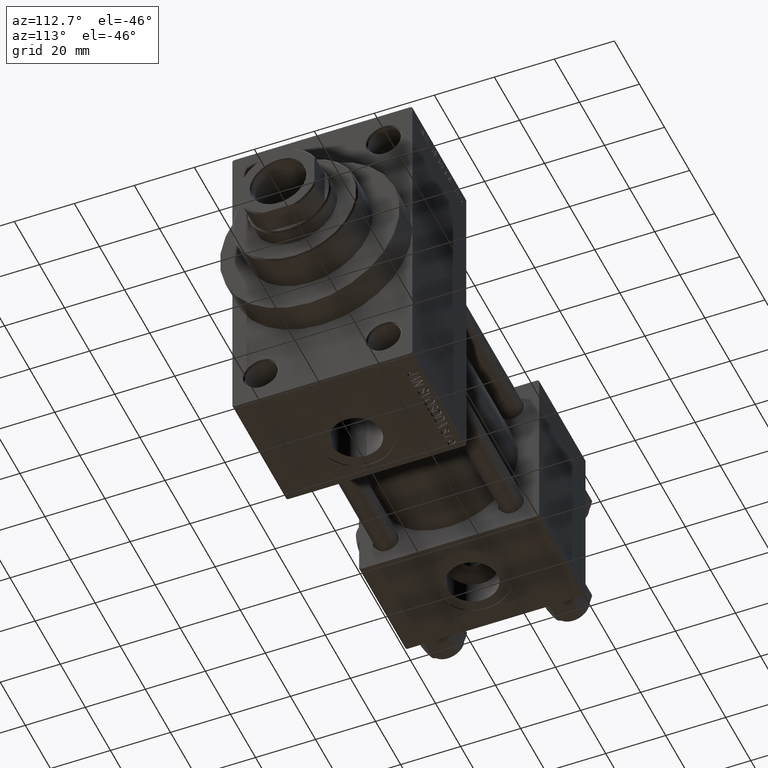
[diagram: clean part render]
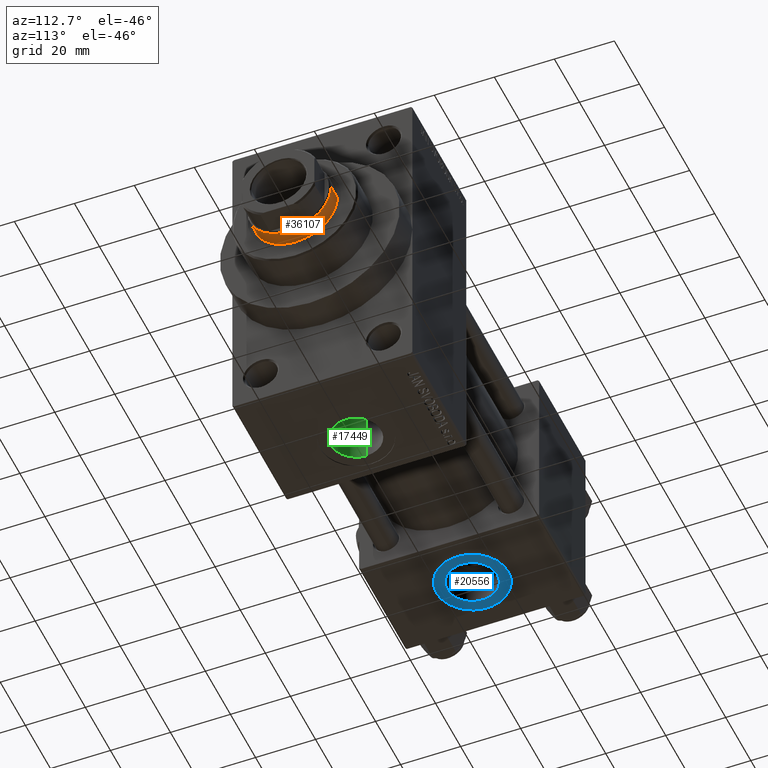
[diagram: same view with three faces highlighted in distinct colors, each labeled with its STEP entity id]
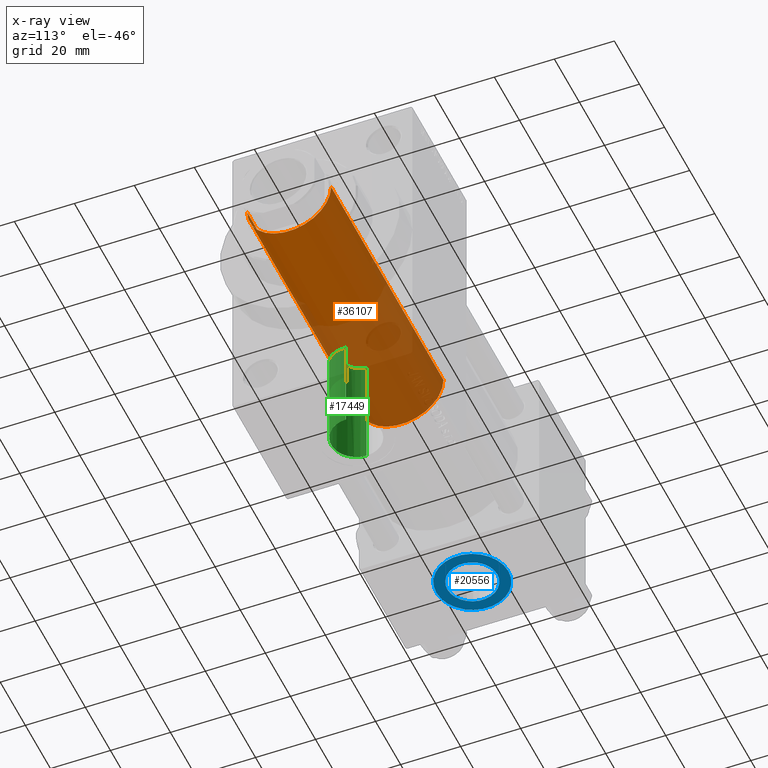
[diagram: x-ray of the same camera — body ghosted, the three highlighted faces saturated]
A machine part, auxiliary view with three faces highlighted in distinct colors.
The next image is the same camera in x-ray (body ghosted, the three faces saturated) — at least one of them is partly hidden behind the body in this view.
Their STEP definitions:

[orange] entity #36107 — the highlighted cylindrical surface (partial cylindrical patch) has radius 14 mm, axis along (-1, 0, 0).
#3424 = DIRECTION ( 'NONE',  ( -0.000000000000000000, -0.000000000000000000, -1.000000000000000000 ) ) ;
#4684 = DIRECTION ( 'NONE',  ( -0.000000000000000000, -0.000000000000000000, -1.000000000000000000 ) ) ;
#7288 = ORIENTED_EDGE ( 'NONE', *, *, #13361, .T. ) ;
#7648 = CARTESIAN_POINT ( 'NONE',  ( -14.00000000000000178, 0.000000000000000000, 38.00000000000000000 ) ) ;
#9558 = VECTOR ( 'NONE', #4684, 1000.000000000000000 ) ;
#10035 = CIRCLE ( 'NONE', #37907, 14.00000000000000178 ) ;
#10472 = CIRCLE ( 'NONE', #31941, 14.00000000000000178 ) ;
#11244 = DIRECTION ( 'NONE',  ( -0.000000000000000000, -0.000000000000000000, -1.000000000000000000 ) ) ;
#13278 = CARTESIAN_POINT ( 'NONE',  ( 0.000000000000000000, 0.000000000000000000, 38.00000000000000000 ) ) ;
#13361 = EDGE_CURVE ( 'NONE', #43148, #13375, #46566, .T. ) ;
#13375 = VERTEX_POINT ( 'NONE', #23628 ) ;
#15482 = LINE ( 'NONE', #30660, #27541 ) ;
#16163 = CARTESIAN_POINT ( 'NONE',  ( 14.00000000000000178, 1.714505518806294441E-15, 128.0000000000000000 ) ) ;
#16546 = EDGE_LOOP ( 'NONE', ( #32405, #7288, #38158, #23779 ) ) ;
#18399 = DIRECTION ( 'NONE',  ( -1.000000000000000000, 0.000000000000000000, 0.000000000000000000 ) ) ;
#21711 = VERTEX_POINT ( 'NONE', #7648 ) ;
#23628 = CARTESIAN_POINT ( 'NONE',  ( 14.00000000000000178, 1.714505518806294441E-15, 38.00000000000000000 ) ) ;
#23779 = ORIENTED_EDGE ( 'NONE', *, *, #46709, .F. ) ;
#26000 = CARTESIAN_POINT ( 'NONE',  ( 14.00000000000000178, 1.714505518806294441E-15, 127.5000000000000853 ) ) ;
#26589 = VERTEX_POINT ( 'NONE', #37107 ) ;
#26590 = CYLINDRICAL_SURFACE ( 'NONE', #42071, 14.00000000000000178 ) ;
#27541 = VECTOR ( 'NONE', #11244, 1000.000000000000000 ) ;
#30660 = CARTESIAN_POINT ( 'NONE',  ( -14.00000000000000178, 0.000000000000000000, 128.0000000000000000 ) ) ;
#31941 = AXIS2_PLACEMENT_3D ( 'NONE', #40963, #48453, #40471 ) ;
#32405 = ORIENTED_EDGE ( 'NONE', *, *, #45433, .T. ) ;
#32436 = DIRECTION ( 'NONE',  ( 1.000000000000000000, 0.000000000000000000, 0.000000000000000000 ) ) ;
#36107 = ADVANCED_FACE ( 'NONE', ( #49280 ), #26590, .T. ) ;
#37107 = CARTESIAN_POINT ( 'NONE',  ( -14.00000000000000178, 0.000000000000000000, 127.5000000000000853 ) ) ;
#37907 = AXIS2_PLACEMENT_3D ( 'NONE', #13278, #39436, #32436 ) ;
#38158 = ORIENTED_EDGE ( 'NONE', *, *, #47386, .T. ) ;
#39436 = DIRECTION ( 'NONE',  ( 0.000000000000000000, 0.000000000000000000, 1.000000000000000000 ) ) ;
#40471 = DIRECTION ( 'NONE',  ( 1.000000000000000000, 0.000000000000000000, 0.000000000000000000 ) ) ;
#40963 = CARTESIAN_POINT ( 'NONE',  ( 0.000000000000000000, 0.000000000000000000, 127.5000000000000853 ) ) ;
#41060 = CARTESIAN_POINT ( 'NONE',  ( 0.000000000000000000, 0.000000000000000000, 128.0000000000000000 ) ) ;
#42071 = AXIS2_PLACEMENT_3D ( 'NONE', #41060, #3424, #18399 ) ;
#43148 = VERTEX_POINT ( 'NONE', #26000 ) ;
#45433 = EDGE_CURVE ( 'NONE', #26589, #43148, #10472, .T. ) ;
#46566 = LINE ( 'NONE', #16163, #9558 ) ;
#46709 = EDGE_CURVE ( 'NONE', #26589, #21711, #15482, .T. ) ;
#47386 = EDGE_CURVE ( 'NONE', #13375, #21711, #10035, .T. ) ;
#48453 = DIRECTION ( 'NONE',  ( 0.000000000000000000, 0.000000000000000000, -1.000000000000000000 ) ) ;
#49280 = FACE_OUTER_BOUND ( 'NONE', #16546, .T. ) ;

[blue] entity #20556 — the highlighted planar face has unit normal (0, -0, -1).
#968 = CARTESIAN_POINT ( 'NONE',  ( 18.50000000000000355, 2.299712579496311108E-15, -29.80000000000000426 ) ) ;
#1620 = CIRCLE ( 'NONE', #15159, 8.330000000000000071 ) ;
#3624 = ORIENTED_EDGE ( 'NONE', *, *, #13107, .F. ) ;
#3762 = EDGE_CURVE ( 'NONE', #25175, #44430, #42012, .T. ) ;
#3924 = ORIENTED_EDGE ( 'NONE', *, *, #3762, .F. ) ;
#4273 = EDGE_CURVE ( 'NONE', #41071, #37344, #14171, .T. ) ;
#9684 = EDGE_LOOP ( 'NONE', ( #43905, #16369 ) ) ;
#11060 = CARTESIAN_POINT ( 'NONE',  ( 18.50000000000000355, 2.299712579496311503E-15, -29.80000000000000426 ) ) ;
#11547 = DIRECTION ( 'NONE',  ( 0.000000000000000000, 1.000000000000000000, 0.000000000000000000 ) ) ;
#11738 = AXIS2_PLACEMENT_3D ( 'NONE', #26468, #15014, #33931 ) ;
#13107 = EDGE_CURVE ( 'NONE', #44430, #25175, #1620, .T. ) ;
#14171 = CIRCLE ( 'NONE', #11738, 12.00000000000000178 ) ;
#15014 = DIRECTION ( 'NONE',  ( 0.000000000000000000, -1.734723475976806848E-16, -1.000000000000000000 ) ) ;
#15159 = AXIS2_PLACEMENT_3D ( 'NONE', #11060, #37732, #11547 ) ;
#15662 = CARTESIAN_POINT ( 'NONE',  ( 18.50000000000000355, -8.329999999999998295, -29.80000000000000426 ) ) ;
#16182 = DIRECTION ( 'NONE',  ( 0.000000000000000000, 1.000000000000000000, -1.734723475976806848E-16 ) ) ;
#16369 = ORIENTED_EDGE ( 'NONE', *, *, #4273, .T. ) ;
#17593 = CARTESIAN_POINT ( 'NONE',  ( 18.50000000000000355, -12.00000000000000000, -29.80000000000000071 ) ) ;
#20556 = ADVANCED_FACE ( 'NONE', ( #46833, #27160 ), #42846, .T. ) ;
#20774 = EDGE_LOOP ( 'NONE', ( #3924, #3624 ) ) ;
#25175 = VERTEX_POINT ( 'NONE', #27501 ) ;
#26409 = DIRECTION ( 'NONE',  ( 0.000000000000000000, -1.734723475976806848E-16, -1.000000000000000000 ) ) ;
#26468 = CARTESIAN_POINT ( 'NONE',  ( 18.50000000000000355, 2.299712579496311108E-15, -29.80000000000000426 ) ) ;
#26898 = CARTESIAN_POINT ( 'NONE',  ( 18.50000000000000355, 2.299712579496311503E-15, -29.80000000000000426 ) ) ;
#26916 = CARTESIAN_POINT ( 'NONE',  ( 18.50000000000000355, 12.00000000000000355, -29.80000000000000782 ) ) ;
#27160 = FACE_OUTER_BOUND ( 'NONE', #9684, .T. ) ;
#27501 = CARTESIAN_POINT ( 'NONE',  ( 18.50000000000000355, 8.330000000000001847, -29.80000000000000426 ) ) ;
#27888 = DIRECTION ( 'NONE',  ( 0.000000000000000000, -1.734723475976806848E-16, -1.000000000000000000 ) ) ;
#29235 = AXIS2_PLACEMENT_3D ( 'NONE', #38950, #41698, #37964 ) ;
#32354 = EDGE_CURVE ( 'NONE', #37344, #41071, #35594, .T. ) ;
#33254 = AXIS2_PLACEMENT_3D ( 'NONE', #26898, #26409, #41608 ) ;
#33931 = DIRECTION ( 'NONE',  ( 0.000000000000000000, 1.000000000000000000, -2.891205793294677833E-16 ) ) ;
#35594 = CIRCLE ( 'NONE', #29235, 12.00000000000000178 ) ;
#37344 = VERTEX_POINT ( 'NONE', #26916 ) ;
#37732 = DIRECTION ( 'NONE',  ( 0.000000000000000000, -1.734723475976806848E-16, -1.000000000000000000 ) ) ;
#37964 = DIRECTION ( 'NONE',  ( 0.000000000000000000, 1.000000000000000000, -2.891205793294677833E-16 ) ) ;
#38950 = CARTESIAN_POINT ( 'NONE',  ( 18.50000000000000355, 2.299712579496311108E-15, -29.80000000000000426 ) ) ;
#41071 = VERTEX_POINT ( 'NONE', #17593 ) ;
#41608 = DIRECTION ( 'NONE',  ( 0.000000000000000000, 1.000000000000000000, 0.000000000000000000 ) ) ;
#41698 = DIRECTION ( 'NONE',  ( 0.000000000000000000, -1.734723475976806848E-16, -1.000000000000000000 ) ) ;
#42012 = CIRCLE ( 'NONE', #33254, 8.330000000000000071 ) ;
#42846 = PLANE ( 'NONE',  #48709 ) ;
#43905 = ORIENTED_EDGE ( 'NONE', *, *, #32354, .T. ) ;
#44430 = VERTEX_POINT ( 'NONE', #15662 ) ;
#46833 = FACE_BOUND ( 'NONE', #20774, .T. ) ;
#48709 = AXIS2_PLACEMENT_3D ( 'NONE', #968, #27888, #16182 ) ;

[green] entity #17449 — the highlighted cylindrical surface (edge-blend (fillet) strip) has radius 8.33 mm, axis along (-0, -0, -1).
#600 = CARTESIAN_POINT ( 'NONE',  ( 116.7709310325000160, -6.021442665975470732, -21.68155238348414926 ) ) ;
#850 = CARTESIAN_POINT ( 'NONE',  ( 114.7487363894115333, -7.487015359358448308, -21.22021487626641090 ) ) ;
#1000 = CARTESIAN_POINT ( 'NONE',  ( 103.3957011906716446, -3.437280950139308899, -15.12160336949478889 ) ) ;
#1486 = CARTESIAN_POINT ( 'NONE',  ( 103.1276717308560507, -2.734627543336183741, -15.25872731907395519 ) ) ;
#1792 = LINE ( 'NONE', #17015, #21687 ) ;
#1827 = CARTESIAN_POINT ( 'NONE',  ( 106.2981393575764457, -6.888851288155064978, -21.42070446004186479 ) ) ;
#1881 = VERTEX_POINT ( 'NONE', #29957 ) ;
#2204 = CIRCLE ( 'NONE', #30826, 8.330000000000003624 ) ;
#4337 = CARTESIAN_POINT ( 'NONE',  ( 118.0799258618782517, -4.408873422199381054, -22.06660649451128720 ) ) ;
#4593 = EDGE_CURVE ( 'NONE', #12757, #13244, #2204, .T. ) ;
#5317 = CARTESIAN_POINT ( 'NONE',  ( 119.3300000000000125, 7.322959413072144135E-15, 54.50100000000002609 ) ) ;
#5468 = ORIENTED_EDGE ( 'NONE', *, *, #23302, .T. ) ;
#5729 = CARTESIAN_POINT ( 'NONE',  ( 102.6700000000000017, 0.000000000000000000, -15.50000000000000000 ) ) ;
#5968 = ORIENTED_EDGE ( 'NONE', *, *, #37295, .T. ) ;
#7569 = DIRECTION ( 'NONE',  ( -1.000000000000000000, 0.000000000000000000, 0.000000000000000000 ) ) ;
#8075 = CARTESIAN_POINT ( 'NONE',  ( 119.2979863424998257, -0.8432915997222987237, -22.48808859033163188 ) ) ;
#8310 = CARTESIAN_POINT ( 'NONE',  ( 111.2794540716097629, -8.328024065339553417, -20.90201419577500985 ) ) ;
#8554 = CARTESIAN_POINT ( 'NONE',  ( 109.3814412075936531, -8.182171164303330357, -20.95982457214782357 ) ) ;
#8683 = DIRECTION ( 'NONE',  ( -1.000000000000000000, 0.000000000000000000, 0.000000000000000000 ) ) ;
#8810 = CARTESIAN_POINT ( 'NONE',  ( 108.1560306839754588, -7.840697625789145420, -21.09036237300174932 ) ) ;
#9053 = CARTESIAN_POINT ( 'NONE',  ( 107.3830852825355180, -7.515492575748676352, -21.20842510955139204 ) ) ;
#9672 = DIRECTION ( 'NONE',  ( -0.000000000000000000, -0.000000000000000000, -1.000000000000000000 ) ) ;
#9713 = CARTESIAN_POINT ( 'NONE',  ( 102.7171157565309301, -1.018099666673965453, -15.47453571050230892 ) ) ;
#12073 = CARTESIAN_POINT ( 'NONE',  ( 113.1626272159215887, -8.088971939222112439, -20.99812971082578272 ) ) ;
#12757 = VERTEX_POINT ( 'NONE', #28594 ) ;
#12933 = CARTESIAN_POINT ( 'NONE',  ( 111.0000000000000000, 6.302828629382399373E-15, -54.29999999999999716 ) ) ;
#13053 = CARTESIAN_POINT ( 'NONE',  ( 105.9550632640747949, -6.641689111475751695, -21.49922460944221569 ) ) ;
#13212 = CARTESIAN_POINT ( 'NONE',  ( 102.8544164064934421, -1.761197746334713710, -15.40162744955963348 ) ) ;
#13244 = VERTEX_POINT ( 'NONE', #41833 ) ;
#14155 = CYLINDRICAL_SURFACE ( 'NONE', #47928, 8.330000000000003624 ) ;
#15082 = CARTESIAN_POINT ( 'NONE',  ( 116.4597915280917988, -6.305104980880364529, -21.60018777995134798 ) ) ;
#15817 = CARTESIAN_POINT ( 'NONE',  ( 115.4717217021022293, -7.077548616542896909, -21.36464718587223643 ) ) ;
#16301 = CARTESIAN_POINT ( 'NONE',  ( 110.4273342078095936, -8.312974207010734418, -20.90801079915067362 ) ) ;
#16452 = CARTESIAN_POINT ( 'NONE',  ( 104.1235194041727965, -4.727222868318516014, -14.76810523087041283 ) ) ;
#16800 = CARTESIAN_POINT ( 'NONE',  ( 104.7400000000000233, -5.495570943951159748, -21.81854028114621258 ) ) ;
#17015 = CARTESIAN_POINT ( 'NONE',  ( 102.6700000000000017, 6.302828629382399373E-15, 54.50100000000002609 ) ) ;
#17202 = CARTESIAN_POINT ( 'NONE',  ( 102.9113641093124158, -2.006660017464342083, -15.37152394863919369 ) ) ;
#17252 = DIRECTION ( 'NONE',  ( -0.000000000000000000, -0.000000000000000000, -1.000000000000000000 ) ) ;
#17434 = B_SPLINE_CURVE_WITH_KNOTS ( 'NONE', 3,
 ( #31241, #42237, #8075, #38490, #23289, #49220, #27279, #26294, #4337, #19553, #46470, #600, #15082, #15817, #850, #12073, #42476, #8310, #19801, #34989, #16301, #35240, #8554, #31474, #8810, #9053, #42718, #1827, #13053, #46956, #24503, #16800 ),
 .UNSPECIFIED., .F., .F.,
 ( 4, 2, 2, 2, 2, 2, 2, 2, 2, 2, 2, 2, 2, 2, 2, 4 ),
 ( 0.02026158208243475714, 0.02152696880141127464, 0.02279235552038778867, 0.02405774223936430617, 0.02532312895834082367, 0.02658851567731734117, 0.02785390239629385520, 0.03038467583424691795, 0.03291544927219998418, 0.03354814263168822558, 0.03418083599117646698, 0.03544622271015295673, 0.03671160942912944647, 0.03797699614810593621, 0.03924238286708242596, 0.04050776958605891570 ),
 .UNSPECIFIED. ) ;
#17449 = ADVANCED_FACE ( 'NONE', ( #43825 ), #14155, .F. ) ;
#18644 = CARTESIAN_POINT ( 'NONE',  ( 104.7400000000000233, -5.495570943951159748, -21.81854028114621258 ) ) ;
#18833 = ORIENTED_EDGE ( 'NONE', *, *, #42048, .F. ) ;
#19415 = LINE ( 'NONE', #49069, #22628 ) ;
#19553 = CARTESIAN_POINT ( 'NONE',  ( 117.6031555897930758, -5.095277354536523973, -21.91828998158686304 ) ) ;
#19801 = CARTESIAN_POINT ( 'NONE',  ( 111.0645977083230065, -8.332469890991669459, -20.90023832775082724 ) ) ;
#19926 = DIRECTION ( 'NONE',  ( 0.000000000000000000, 0.000000000000000000, -1.000000000000000000 ) ) ;
#20204 = CARTESIAN_POINT ( 'NONE',  ( 104.7400000000000233, -5.495570943951159748, -14.49305695841977126 ) ) ;
#20293 = LINE ( 'NONE', #5317, #41257 ) ;
#21354 = ORIENTED_EDGE ( 'NONE', *, *, #23519, .T. ) ;
#21687 = VECTOR ( 'NONE', #17252, 1000.000000000000000 ) ;
#22628 = VECTOR ( 'NONE', #34101, 1000.000000000000000 ) ;
#23289 = CARTESIAN_POINT ( 'NONE',  ( 119.0725935047802437, -2.097577831626823652, -22.40566635581345167 ) ) ;
#23302 = EDGE_CURVE ( 'NONE', #34797, #1881, #47895, .T. ) ;
#23519 = EDGE_CURVE ( 'NONE', #1881, #36111, #19415, .T. ) ;
#24503 = CARTESIAN_POINT ( 'NONE',  ( 105.0173696454154140, -5.811522461638596759, -21.73895961452385350 ) ) ;
#24918 = CARTESIAN_POINT ( 'NONE',  ( 104.4179755865719841, -5.128753219529214036, -14.63214927233553020 ) ) ;
#26294 = CARTESIAN_POINT ( 'NONE',  ( 118.2951098973458244, -4.042988316980868468, -22.13706359110742383 ) ) ;
#27279 = CARTESIAN_POINT ( 'NONE',  ( 118.6639140372367791, -3.290714903397363500, -22.26132373405804898 ) ) ;
#27499 = EDGE_LOOP ( 'NONE', ( #18833, #5968, #36072, #36874, #5468, #21354 ) ) ;
#27664 = CARTESIAN_POINT ( 'NONE',  ( 103.6132950555275301, -3.881908228545226436, -15.01247336923427866 ) ) ;
#28409 = CARTESIAN_POINT ( 'NONE',  ( 103.0478246800818312, -2.493115055326095231, -15.30015719691090403 ) ) ;
#28594 = CARTESIAN_POINT ( 'NONE',  ( 119.3300000000000125, 7.322959413072142557E-15, -54.29999999999999716 ) ) ;
#29957 = CARTESIAN_POINT ( 'NONE',  ( 104.7400000000000233, -5.495570943951159748, -14.49305695841977126 ) ) ;
#30826 = AXIS2_PLACEMENT_3D ( 'NONE', #12933, #19926, #8683 ) ;
#31241 = CARTESIAN_POINT ( 'NONE',  ( 119.3300000000000125, -1.030843987897557177E-23, -22.50000000000000355 ) ) ;
#31474 = CARTESIAN_POINT ( 'NONE',  ( 108.5613052431537540, -7.976241308370980221, -21.03905286955202314 ) ) ;
#33074 = CARTESIAN_POINT ( 'NONE',  ( 111.0000000000000000, 6.302828629382399373E-15, 54.50100000000002609 ) ) ;
#34101 = DIRECTION ( 'NONE',  ( -0.000000000000000000, -0.000000000000000000, -1.000000000000000000 ) ) ;
#34797 = VERTEX_POINT ( 'NONE', #37442 ) ;
#34989 = CARTESIAN_POINT ( 'NONE',  ( 110.6388607599010214, -8.324890737869420576, -20.90325837862613412 ) ) ;
#35166 = VERTEX_POINT ( 'NONE', #35347 ) ;
#35240 = CARTESIAN_POINT ( 'NONE',  ( 109.7966742200955963, -8.253438808842114227, -20.93161653585327286 ) ) ;
#35347 = CARTESIAN_POINT ( 'NONE',  ( 119.3300000000000125, -1.030843987897557177E-23, -22.50000000000000355 ) ) ;
#35481 = DIRECTION ( 'NONE',  ( -0.000000000000000000, -0.000000000000000000, -1.000000000000000000 ) ) ;
#35633 = CARTESIAN_POINT ( 'NONE',  ( 102.6700000000000017, -0.5138056584032570928, -15.50000000000000178 ) ) ;
#36072 = ORIENTED_EDGE ( 'NONE', *, *, #4593, .T. ) ;
#36111 = VERTEX_POINT ( 'NONE', #18644 ) ;
#36874 = ORIENTED_EDGE ( 'NONE', *, *, #44017, .F. ) ;
#37295 = EDGE_CURVE ( 'NONE', #35166, #12757, #20293, .T. ) ;
#37442 = CARTESIAN_POINT ( 'NONE',  ( 102.6700000000000017, 0.000000000000000000, -15.50000000000000000 ) ) ;
#38490 = CARTESIAN_POINT ( 'NONE',  ( 119.1699291769579077, -1.679278209817683276, -22.44115179447786446 ) ) ;
#41257 = VECTOR ( 'NONE', #35481, 1000.000000000000000 ) ;
#41833 = CARTESIAN_POINT ( 'NONE',  ( 102.6700000000000017, 6.302828629382399373E-15, -54.29999999999999716 ) ) ;
#42048 = EDGE_CURVE ( 'NONE', #35166, #36111, #17434, .T. ) ;
#42237 = CARTESIAN_POINT ( 'NONE',  ( 119.3300000000000409, -0.4228661663087318612, -22.50000000000001421 ) ) ;
#42476 = CARTESIAN_POINT ( 'NONE',  ( 112.3403738839046895, -8.265299052519043954, -20.92696222447262500 ) ) ;
#42718 = CARTESIAN_POINT ( 'NONE',  ( 107.0116854358692962, -7.325101535721546320, -21.27547271216653968 ) ) ;
#43825 = FACE_OUTER_BOUND ( 'NONE', #27499, .T. ) ;
#44017 = EDGE_CURVE ( 'NONE', #34797, #13244, #1792, .T. ) ;
#46470 = CARTESIAN_POINT ( 'NONE',  ( 117.3413009043436830, -5.417501232309193782, -21.84028767977485330 ) ) ;
#46956 = CARTESIAN_POINT ( 'NONE',  ( 105.3158746668531620, -6.103616970294096333, -21.65812902678066720 ) ) ;
#47895 = B_SPLINE_CURVE_WITH_KNOTS ( 'NONE', 3,
 ( #5729, #35633, #9713, #13212, #17202, #28409, #1486, #1000, #27664, #16452, #24918, #20204 ),
 .UNSPECIFIED., .F., .F.,
 ( 4, 2, 2, 2, 2, 4 ),
 ( 6.110088917952640610E-18, 0.001517665819389868312, 0.002276498729084796072, 0.003035331638779723614, 0.004552997458169577398, 0.006070663277559430748 ),
 .UNSPECIFIED. ) ;
#47928 = AXIS2_PLACEMENT_3D ( 'NONE', #33074, #9672, #7569 ) ;
#49069 = CARTESIAN_POINT ( 'NONE',  ( 104.7400000000000233, -5.495570943951159748, 54.50100000000002609 ) ) ;
#49220 = CARTESIAN_POINT ( 'NONE',  ( 118.8195974207912968, -2.901808889280239612, -22.31576175661178496 ) ) ;